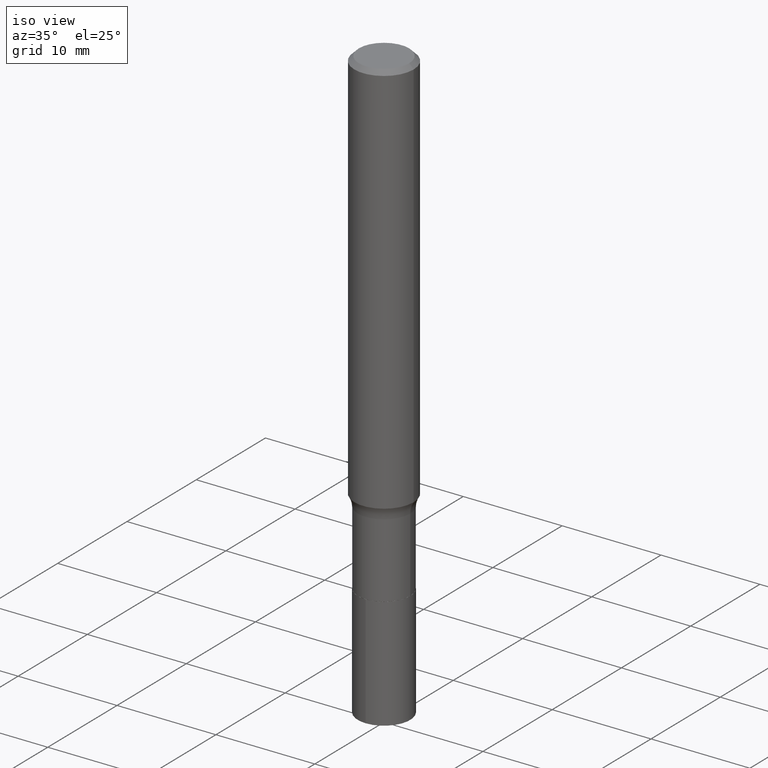
[diagram: clean part render]
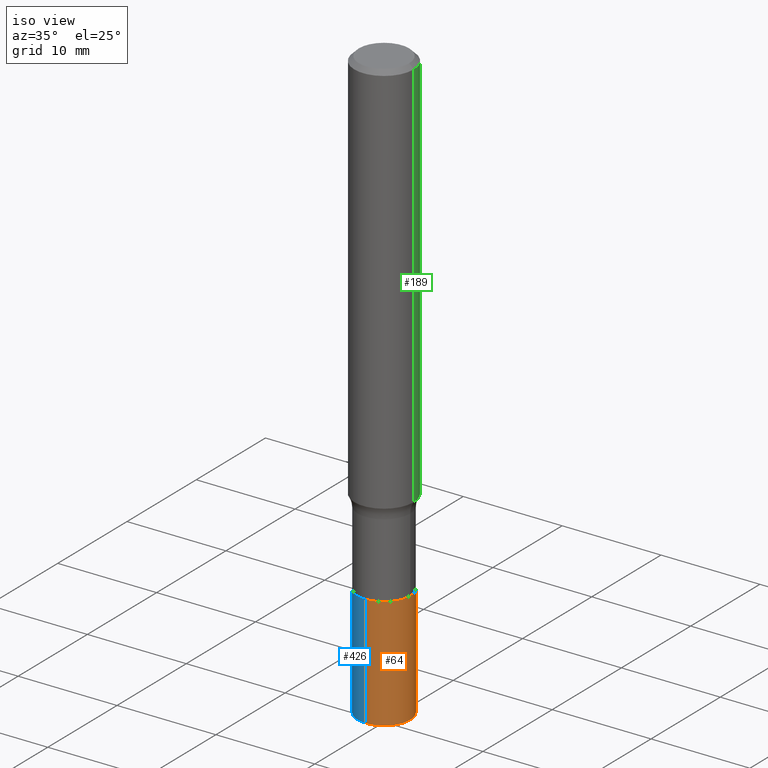
[diagram: same view with three faces highlighted in distinct colors, each labeled with its STEP entity id]
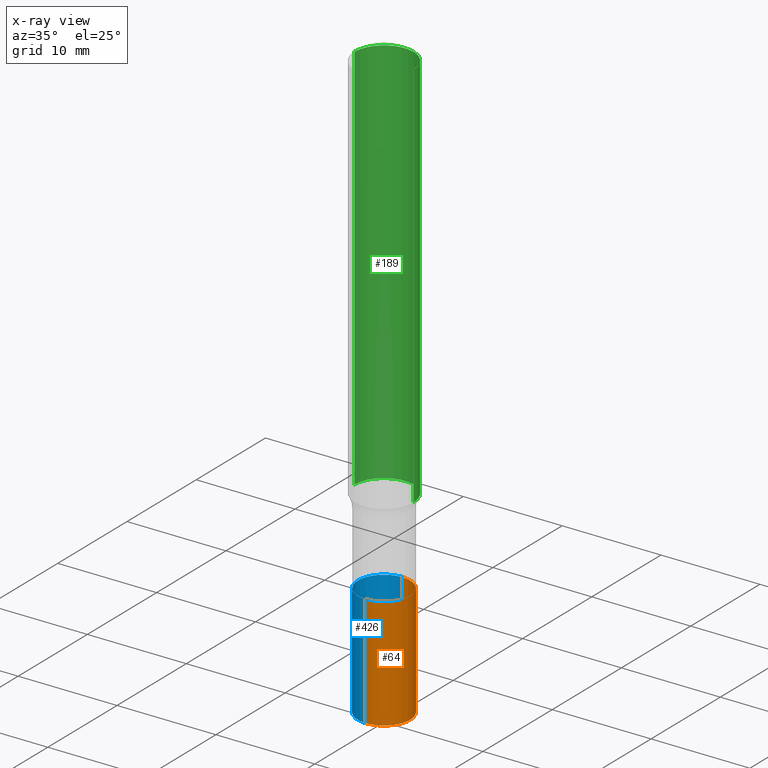
[diagram: x-ray of the same camera — body ghosted, the three highlighted faces saturated]
A machine part, iso view with three faces highlighted in distinct colors.
The next image is the same camera in x-ray (body ghosted, the three faces saturated) — at least one of them is partly hidden behind the body in this view.
Their STEP definitions:

[orange] entity #64 — the highlighted cylindrical surface (edge-blend (fillet) strip) has radius 2.6505 mm, axis along (-0, 0, 1).
#2 = DIRECTION ( 'NONE',  ( -2.480896975213797344E-29, 3.440746184347948526E-15, 1.000000000000000000 ) ) ;
#10 = VECTOR ( 'NONE', #283, 39.37007874015748143 ) ;
#29 = ORIENTED_EDGE ( 'NONE', *, *, #70, .T. ) ;
#43 = EDGE_CURVE ( 'NONE', #259, #241, #143, .T. ) ;
#53 = EDGE_LOOP ( 'NONE', ( #462, #29, #449, #274 ) ) ;
#58 = VECTOR ( 'NONE', #322, 39.37007874015748143 ) ;
#59 = CARTESIAN_POINT ( 'NONE',  ( -7.286721554165148820E-16, -0.1043500000000066874, -1.916199999999999903 ) ) ;
#64 = ADVANCED_FACE ( 'NONE', ( #209 ), #360, .T. ) ;
#70 = EDGE_CURVE ( 'NONE', #226, #406, #214, .T. ) ;
#77 = DIRECTION ( 'NONE',  ( -2.480896975213797344E-29, 3.440746184347948526E-15, 1.000000000000000000 ) ) ;
#81 = DIRECTION ( 'NONE',  ( -6.982962677686265922E-15, -1.000000000000000000, 2.617966452960483025E-15 ) ) ;
#90 = DIRECTION ( 'NONE',  ( -6.982962677686265922E-15, -1.000000000000000000, 2.617966452960482631E-15 ) ) ;
#103 = AXIS2_PLACEMENT_3D ( 'NONE', #289, #77, #211 ) ;
#107 = EDGE_CURVE ( 'NONE', #259, #226, #385, .T. ) ;
#143 = LINE ( 'NONE', #243, #10 ) ;
#159 = CIRCLE ( 'NONE', #251, 0.1043499999999999844 ) ;
#199 = EDGE_CURVE ( 'NONE', #241, #406, #159, .T. ) ;
#209 = FACE_OUTER_BOUND ( 'NONE', #53, .T. ) ;
#211 = DIRECTION ( 'NONE',  ( -6.982962677686265922E-15, -1.000000000000000000, 2.617966452960483025E-15 ) ) ;
#214 = LINE ( 'NONE', #359, #58 ) ;
#226 = VERTEX_POINT ( 'NONE', #335 ) ;
#241 = VERTEX_POINT ( 'NONE', #59 ) ;
#243 = CARTESIAN_POINT ( 'NONE',  ( -7.286721554165147834E-16, -0.1043500000000066735, -1.916199999999999903 ) ) ;
#245 = CARTESIAN_POINT ( 'NONE',  ( 4.686007326411958791E-29, -6.690376541491236123E-15, -1.916200000000000125 ) ) ;
#251 = AXIS2_PLACEMENT_3D ( 'NONE', #245, #2, #90 ) ;
#259 = VERTEX_POINT ( 'NONE', #372 ) ;
#274 = ORIENTED_EDGE ( 'NONE', *, *, #43, .F. ) ;
#275 = CARTESIAN_POINT ( 'NONE',  ( 7.414513447657221188E-16, 0.1043499999999932953, -1.916200000000000347 ) ) ;
#283 = DIRECTION ( 'NONE',  ( -2.480896975213797344E-29, 3.440746184347948920E-15, 1.000000000000000000 ) ) ;
#289 = CARTESIAN_POINT ( 'NONE',  ( 5.792487377357313463E-29, -8.224949339710422363E-15, -2.362200000000000522 ) ) ;
#322 = DIRECTION ( 'NONE',  ( -2.480896975213797344E-29, 3.440746184347948920E-15, 1.000000000000000000 ) ) ;
#326 = DIRECTION ( 'NONE',  ( -2.480896975213797344E-29, 3.440746184347948526E-15, 1.000000000000000000 ) ) ;
#335 = CARTESIAN_POINT ( 'NONE',  ( 7.414513447657164982E-16, 0.1043499999999917410, -2.362200000000000966 ) ) ;
#359 = CARTESIAN_POINT ( 'NONE',  ( 7.414513447657110748E-16, 0.1043499999999932815, -1.916200000000000347 ) ) ;
#360 = CYLINDRICAL_SURFACE ( 'NONE', #435, 0.1043499999999999706 ) ;
#372 = CARTESIAN_POINT ( 'NONE',  ( -7.286721554165037393E-16, -0.1043500000000082001, -2.362200000000000077 ) ) ;
#385 = CIRCLE ( 'NONE', #103, 0.1043499999999999706 ) ;
#406 = VERTEX_POINT ( 'NONE', #275 ) ;
#434 = CARTESIAN_POINT ( 'NONE',  ( 4.686007326411958791E-29, -6.690376541491236123E-15, -1.916200000000000125 ) ) ;
#435 = AXIS2_PLACEMENT_3D ( 'NONE', #434, #326, #81 ) ;
#449 = ORIENTED_EDGE ( 'NONE', *, *, #199, .F. ) ;
#462 = ORIENTED_EDGE ( 'NONE', *, *, #107, .T. ) ;

[blue] entity #426 — the highlighted cylindrical surface (edge-blend (fillet) strip) has radius 2.6505 mm, axis along (-0, 0, 1).
#10 = VECTOR ( 'NONE', #283, 39.37007874015748143 ) ;
#43 = EDGE_CURVE ( 'NONE', #259, #241, #143, .T. ) ;
#54 = CARTESIAN_POINT ( 'NONE',  ( 5.792487377357313463E-29, -8.224949339710422363E-15, -2.362200000000000522 ) ) ;
#56 = CARTESIAN_POINT ( 'NONE',  ( 4.686007326411958791E-29, -6.690376541491236123E-15, -1.916200000000000125 ) ) ;
#58 = VECTOR ( 'NONE', #322, 39.37007874015748143 ) ;
#59 = CARTESIAN_POINT ( 'NONE',  ( -7.286721554165148820E-16, -0.1043500000000066874, -1.916199999999999903 ) ) ;
#70 = EDGE_CURVE ( 'NONE', #226, #406, #214, .T. ) ;
#91 = ORIENTED_EDGE ( 'NONE', *, *, #395, .F. ) ;
#105 = CARTESIAN_POINT ( 'NONE',  ( 4.686007326411958791E-29, -6.690376541491236123E-15, -1.916200000000000125 ) ) ;
#124 = AXIS2_PLACEMENT_3D ( 'NONE', #105, #133, #279 ) ;
#133 = DIRECTION ( 'NONE',  ( -2.480896975213797344E-29, 3.440746184347948526E-15, 1.000000000000000000 ) ) ;
#137 = FACE_OUTER_BOUND ( 'NONE', #351, .T. ) ;
#143 = LINE ( 'NONE', #243, #10 ) ;
#182 = AXIS2_PLACEMENT_3D ( 'NONE', #56, #297, #188 ) ;
#188 = DIRECTION ( 'NONE',  ( -6.982962677686265922E-15, -1.000000000000000000, 2.617966452960482631E-15 ) ) ;
#202 = CIRCLE ( 'NONE', #182, 0.1043499999999999844 ) ;
#214 = LINE ( 'NONE', #359, #58 ) ;
#226 = VERTEX_POINT ( 'NONE', #335 ) ;
#231 = ORIENTED_EDGE ( 'NONE', *, *, #43, .T. ) ;
#238 = CYLINDRICAL_SURFACE ( 'NONE', #124, 0.1043499999999999706 ) ;
#241 = VERTEX_POINT ( 'NONE', #59 ) ;
#243 = CARTESIAN_POINT ( 'NONE',  ( -7.286721554165147834E-16, -0.1043500000000066735, -1.916199999999999903 ) ) ;
#244 = CIRCLE ( 'NONE', #308, 0.1043499999999999706 ) ;
#259 = VERTEX_POINT ( 'NONE', #372 ) ;
#275 = CARTESIAN_POINT ( 'NONE',  ( 7.414513447657221188E-16, 0.1043499999999932953, -1.916200000000000347 ) ) ;
#279 = DIRECTION ( 'NONE',  ( -6.982962677686265922E-15, -1.000000000000000000, 2.617966452960483025E-15 ) ) ;
#283 = DIRECTION ( 'NONE',  ( -2.480896975213797344E-29, 3.440746184347948920E-15, 1.000000000000000000 ) ) ;
#297 = DIRECTION ( 'NONE',  ( -2.480896975213797344E-29, 3.440746184347948526E-15, 1.000000000000000000 ) ) ;
#308 = AXIS2_PLACEMENT_3D ( 'NONE', #54, #453, #376 ) ;
#311 = ORIENTED_EDGE ( 'NONE', *, *, #316, .T. ) ;
#316 = EDGE_CURVE ( 'NONE', #226, #259, #244, .T. ) ;
#322 = DIRECTION ( 'NONE',  ( -2.480896975213797344E-29, 3.440746184347948920E-15, 1.000000000000000000 ) ) ;
#335 = CARTESIAN_POINT ( 'NONE',  ( 7.414513447657164982E-16, 0.1043499999999917410, -2.362200000000000966 ) ) ;
#351 = EDGE_LOOP ( 'NONE', ( #373, #311, #231, #91 ) ) ;
#359 = CARTESIAN_POINT ( 'NONE',  ( 7.414513447657110748E-16, 0.1043499999999932815, -1.916200000000000347 ) ) ;
#372 = CARTESIAN_POINT ( 'NONE',  ( -7.286721554165037393E-16, -0.1043500000000082001, -2.362200000000000077 ) ) ;
#373 = ORIENTED_EDGE ( 'NONE', *, *, #70, .F. ) ;
#376 = DIRECTION ( 'NONE',  ( -6.982962677686265922E-15, -1.000000000000000000, 2.617966452960483025E-15 ) ) ;
#395 = EDGE_CURVE ( 'NONE', #406, #241, #202, .T. ) ;
#406 = VERTEX_POINT ( 'NONE', #275 ) ;
#426 = ADVANCED_FACE ( 'NONE', ( #137 ), #238, .T. ) ;
#453 = DIRECTION ( 'NONE',  ( -2.480896975213797344E-29, 3.440746184347948526E-15, 1.000000000000000000 ) ) ;

[green] entity #189 — the highlighted cylindrical surface (edge-blend (fillet) strip) has radius 2.9997 mm, axis along (-0, 0, 1).
#4 = VECTOR ( 'NONE', #345, 39.37007874015748143 ) ;
#40 = CARTESIAN_POINT ( 'NONE',  ( -0.1180999999999999966, -1.941415052491705920E-15, -0.01771500000000010913 ) ) ;
#47 = FACE_OUTER_BOUND ( 'NONE', #193, .T. ) ;
#55 = ORIENTED_EDGE ( 'NONE', *, *, #460, .F. ) ;
#62 = VERTEX_POINT ( 'NONE', #327 ) ;
#71 = DIRECTION ( 'NONE',  ( 1.000000000000000000, -6.982962677686266711E-15, 0.000000000000000000 ) ) ;
#109 = VERTEX_POINT ( 'NONE', #40 ) ;
#110 = DIRECTION ( 'NONE',  ( 1.000000000000000000, -6.982962677686268288E-15, 0.000000000000000000 ) ) ;
#144 = CARTESIAN_POINT ( 'NONE',  ( 3.851751593051242505E-29, -5.499280454931165191E-15, -1.575056522213369670 ) ) ;
#152 = CIRCLE ( 'NONE', #400, 0.1180999999999999966 ) ;
#154 = CARTESIAN_POINT ( 'NONE',  ( 0.1181000000000002326, -6.323968347165915031E-15, -1.575056522213369670 ) ) ;
#164 = DIRECTION ( 'NONE',  ( -2.445468806185136877E-29, 3.491481338843145188E-15, 1.000000000000000000 ) ) ;
#175 = CIRCLE ( 'NONE', #399, 0.1181000000000002048 ) ;
#187 = AXIS2_PLACEMENT_3D ( 'NONE', #290, #250, #401 ) ;
#189 = ADVANCED_FACE ( 'NONE', ( #47 ), #292, .T. ) ;
#193 = EDGE_LOOP ( 'NONE', ( #234, #347, #355, #55 ) ) ;
#195 = EDGE_CURVE ( 'NONE', #380, #318, #175, .T. ) ;
#200 = DIRECTION ( 'NONE',  ( -2.445468806185136597E-29, 3.491481338843145583E-15, 1.000000000000000000 ) ) ;
#220 = CARTESIAN_POINT ( 'NONE',  ( -0.1181000000000002326, -4.660129483998485416E-15, -1.575056522213369670 ) ) ;
#234 = ORIENTED_EDGE ( 'NONE', *, *, #195, .T. ) ;
#240 = LINE ( 'NONE', #378, #436 ) ;
#250 = DIRECTION ( 'NONE',  ( -2.445468806185136597E-29, 3.491481338843145583E-15, 1.000000000000000000 ) ) ;
#285 = DIRECTION ( 'NONE',  ( -2.445468806185136597E-29, 3.491481338843145583E-15, 1.000000000000000000 ) ) ;
#290 = CARTESIAN_POINT ( 'NONE',  ( 0.000000000000000000, 0.000000000000000000, 0.000000000000000000 ) ) ;
#292 = CYLINDRICAL_SURFACE ( 'NONE', #187, 0.1181000000000001077 ) ;
#306 = LINE ( 'NONE', #389, #4 ) ;
#318 = VERTEX_POINT ( 'NONE', #220 ) ;
#327 = CARTESIAN_POINT ( 'NONE',  ( 0.1180999999999999966, -8.865394841523547570E-16, -0.01771500000000010913 ) ) ;
#345 = DIRECTION ( 'NONE',  ( -2.445468806185136877E-29, 3.491481338843145188E-15, 1.000000000000000000 ) ) ;
#347 = ORIENTED_EDGE ( 'NONE', *, *, #411, .T. ) ;
#355 = ORIENTED_EDGE ( 'NONE', *, *, #402, .F. ) ;
#378 = CARTESIAN_POINT ( 'NONE',  ( 0.1181000000000001077, -8.246878922347488542E-16, 5.758764772215005345E-30 ) ) ;
#380 = VERTEX_POINT ( 'NONE', #154 ) ;
#387 = CARTESIAN_POINT ( 'NONE',  ( 4.332147990156996744E-31, -6.185159191760670395E-17, -0.01771500000000010913 ) ) ;
#389 = CARTESIAN_POINT ( 'NONE',  ( -0.1181000000000001077, 8.391509709326790846E-16, -5.809262341591049389E-30 ) ) ;
#399 = AXIS2_PLACEMENT_3D ( 'NONE', #144, #285, #110 ) ;
#400 = AXIS2_PLACEMENT_3D ( 'NONE', #387, #200, #71 ) ;
#401 = DIRECTION ( 'NONE',  ( 1.000000000000000000, -6.982962677686266711E-15, 4.876176775795935793E-29 ) ) ;
#402 = EDGE_CURVE ( 'NONE', #62, #109, #152, .T. ) ;
#411 = EDGE_CURVE ( 'NONE', #318, #109, #306, .T. ) ;
#436 = VECTOR ( 'NONE', #164, 39.37007874015748143 ) ;
#460 = EDGE_CURVE ( 'NONE', #380, #62, #240, .T. ) ;